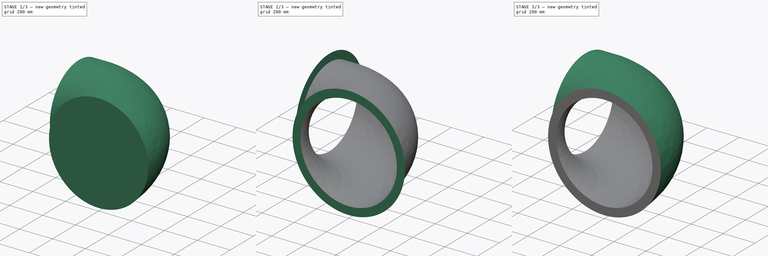
[diagram: build sequence overview — one tinted view per stage of 3, left to right]
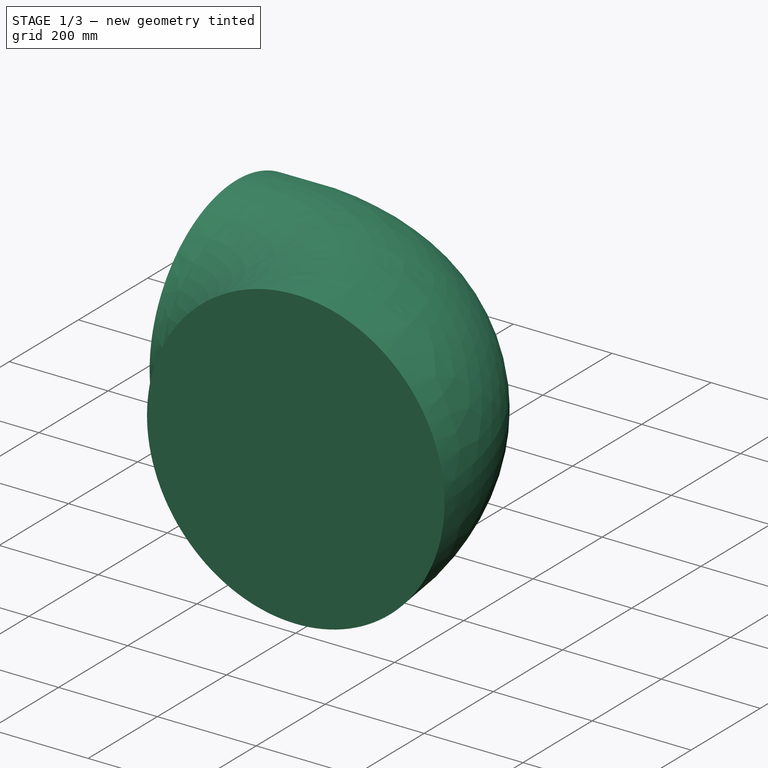
[diagram: stage 1 of 3 — iso view after this stage's code; geometry added in this stage tinted green]
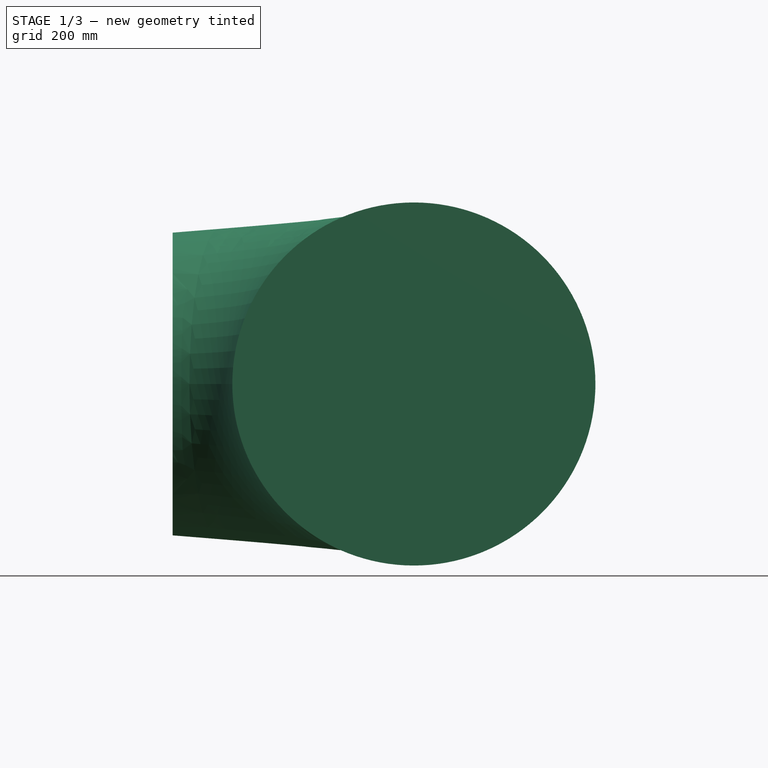
[diagram: stage 1 of 3 — front view after this stage's code; geometry added in this stage tinted green]
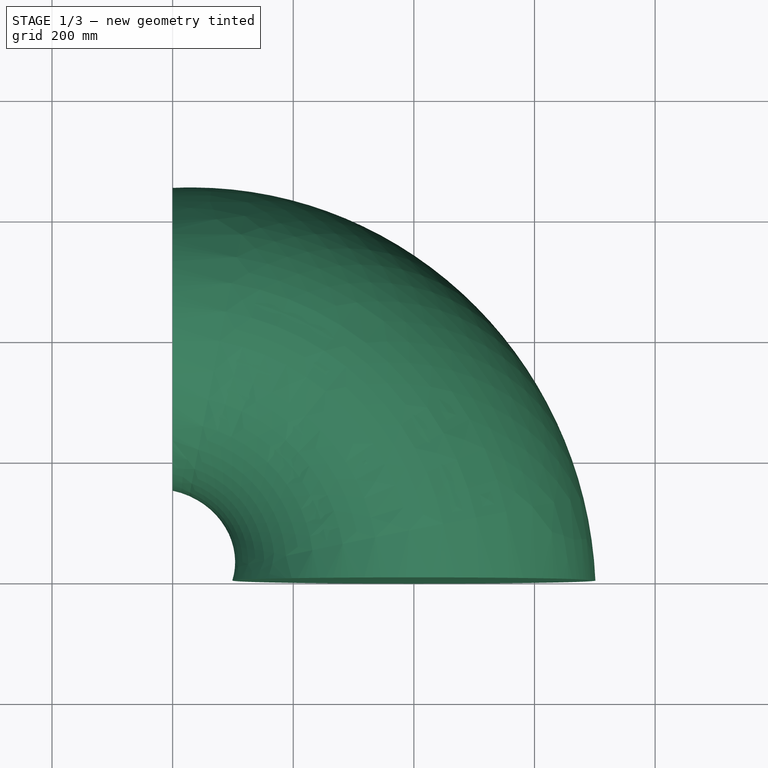
[diagram: stage 1 of 3 — top view after this stage's code; geometry added in this stage tinted green]
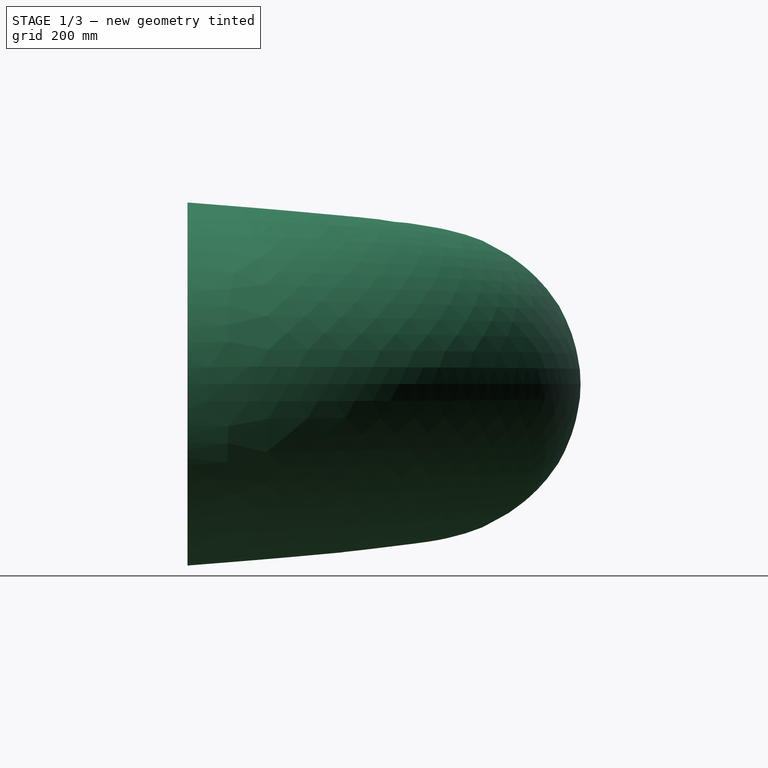
[diagram: stage 1 of 3 — right view after this stage's code; geometry added in this stage tinted green]
FCSTD DOCUMENT  (FreeCAD 1.0R38641 +468 (Git))
Label: Duct_curved_circular_complete_R05
License: All rights reserved
LicenseURL: http://en.wikipedia.org/wiki/All_rights_reserved
objects: Sketcher::SketchObject×8, App::DocumentObjectGroup×4, Part::Sweep×3, TechDraw::DrawViewPart×3, App::MaterialObjectPython×2, Part::Cut×2, Part::Extrusion×2, Spreadsheet::Sheet×1, TechDraw::DrawSVGTemplate×1, TechDraw::DrawViewSpreadsheet×1, Part::Part2DObjectPython×1, App::TextDocument×1, App::VarSet×1, App::DocumentObjectGroupPython×1, TechDraw::DrawProjGroupItem×1, TechDraw::DrawViewSection×1, TechDraw::DrawPage×1
note: 24 computed .brp shape members not serialized (recipe doc carries the construction recipe); baked Part::Feature solids carry a one-line shape summary decoded from their .brp

FEATURE [Spreadsheet::Sheet] Spreadsheet003  label="Output_circular_duct"
  cells = A1='Description:; A2==<<Curved duct (%s>> % round(VarSet.Duct_Axis.LastAngle - VarSet.Duct_Axis.FirstAngle) + <<) for air conditioning composed of %s>> % VarSet.Duct_Sheet_thickness + << thick %s>> % VarSet.Materials_Sheet_metal.Label + << sheets (diameters of %s>> % VarSet.Duct_Diameter1 + << and %s>> % VarSet.Duct_Diameter2 + <<)>> + VarSet.Insulation_Insulation * (<< with an external insulation layer of %s>> % VarSet.Insulation_Thickness + << thick %s>> % VarSet.Materials_Insulation.Label + << blanket>>) + <<.>>; A5='Components; B5='Dimensions; C5='Material; D5='Area; A6='Duct; C6==VarSet.Materials_Sheet_metal.Label; D6==Cut.Base_Area; A7='1.1. Duct_pipe length:; B7==VarSet.Duct_Axis.LastAngle - VarSet.Duct_Axis.FirstAngle; A8='1.2. Axis radius:; B8==VarSet.Duct_Axis.Radius; A9='1.3. Diameter 1:; B9==VarSet.Duct_Diameter1; A10='1.4. Diameter 2:; B10==VarSet.Duct_Diameter2; A11='1.5. Sheet thickness:; B11==VarSet.Duct_Sheet_thickness; A12==(VarSet.Flange_Flange_01 + VarSet.Flange_Flange_02 - VarSet.Flange_Flange_01 * VarSet.Flange_Flange_02) * <<2.Flanges>>; D12==(VarSet.Flange_Flange_01 + VarSet.Flange_Flange_02 - VarSet.Flange_Flange_01 * VarSet.Flange_Flange_02) * str(round(Extrude.Base_Area * VarSet.Flange_Flange_01 + Extrude002.Base_Area * VarSet.Flange_Flange_02)); A13==(VarSet.Flange_Flange_01 + VarSet.Flange_Flange_02 - VarSet.Flange_Flange_01 * VarSet.Flange_Flange_02) * <<2.1. Flanges height:>>; B13==(VarSet.Flange_Flange_01 + VarSet.Flange_Flange_02 - VarSet.Flange_Flange_01 * VarSet.Flange_Flange_02) * str(VarSet.Flange_Height); A14==(VarSet.Flange_Flange_01 + VarSet.Flange_Flange_02 - VarSet.Flange_Flange_01 * VarSet.Flange_Flange_02) * <<2.2. Flanges thickness:>>; B14==(VarSet.Flange_Flange_01 + VarSet.Flange_Flange_02 - VarSet.Flange_Flange_01 * VarSet.Flange_Flange_02) * str(VarSet.Flange_Thickness); A15==VarSet.Insulation_Insulation * <<3. Insulation>>; C15==VarSet.Insulation_Insulation * VarSet.Materials_Insulation.Label; D15==VarSet.Insulation_Insulation * str(round(Cut008.Base_Area)); A16==VarSet.Insulation_Insulation * <<3.1.Insulation thickness:>>; B16==VarSet.Insulation_Insulation * str(VarSet.Insulation_Thickness)
FEATURE [App::DocumentObjectGroup] Group001  label="Spreadsheet_output_"
  Group = -> [Spreadsheet003]
FEATURE [TechDraw::DrawSVGTemplate] Template
  EditableTexts = AUTHOR_NAME=AUTHOR NAME; DN=DN; DRAWING_TITLE=DRAWING TITLE; FC-DATE=DD/MM/YYYY; FC-REV=REV A; FC-SC=SCALE; FC-SH=X / Y; FC-SI=A3; FreeCAD_DRAWING=FreeCAD DRAWING; PN=PN
  Height = 297
  Orientation = 1
  Template = <userpath>/.cache/FreeCAD/Cache/FreeCAD_Doc_4981bfa1-569c-477a-b416-fe8666e2ccff_d7bfc7_3891/A3_Landscape_ISO7200TD.svg
  Width = 420
FEATURE [TechDraw::DrawViewSpreadsheet] Sheet  label="Spreadsheet"
  CellEnd = D16
  CellStart = A5
  Font = Arial
  LineWidth = 0.35
  LockPosition = false
  Rotation = 0
  ScaleType = 2
  Source = -> Spreadsheet003
  Symbol = <blob: 10981 chars omitted>
  TextSize = 14
  X = 319.434
  Y = 120.168
  expr: Scale = 1
FEATURE [Part::Part2DObjectPython] Arc001  label="Axis_"  # Draft 2D object (typed FeaturePython)
  Area = 0
  FirstAngle = 0
  LastAngle = 90
  MakeFace = false
  Radius = 400
FEATURE [Sketcher::SketchObject] Sketch  label="Opening_02_internal_circular_"
  ArcFitTolerance = 0
  AttachmentSupport = -> [Arc001]
  FullyConstrained = true
  MakeInternals = false
  MapMode = 7
  Placement = pos=(1.3441e-08,400,0) rot=(0.57735,0.57735,0.57735;2.0944rad)
  expr: .Constraints.Diameter = VarSet.Duct_Diameter2
  expr: .Constraints.Horizontal_position = VarSet.Duct_Opening2_horizontal_position
  expr: .Constraints.Vertical_position = VarSet.Duct_Opening2_vertical_position
  expr: AttachmentSupport = VarSet.Duct_Axis
  expr: MapPathParameter = 1 - VarSet.Duct_Flip_axis
  sketch-geometry (1):
    g0: Circle CenterX=0 CenterY=0 CenterZ=0 NormalX=0 NormalY=0 NormalZ=1 AngleXU=0 Radius=250
  constraints (3):
    c: Diameter(g0) = 500  'Diameter'
    c: DistanceX(g-1,g0) = 0  'Horizontal_position'
    c: DistanceY(g-1,g0) = 0  'Vertical_position'
FEATURE [Sketcher::SketchObject] Sketch032  label="Opening_01_internal_circular_"
  ArcFitTolerance = 0
  AttachmentSupport = -> [Arc001]
  FullyConstrained = true
  MakeInternals = false
  MapMode = 7
  Placement = pos=(400,0,0) rot=(1,0,0;1.5708rad)
  expr: .AttachmentOffset.Base.z = 0
  expr: .Constraints.Diameter = VarSet.Duct_Diameter1
  expr: AttachmentSupport = VarSet.Duct_Axis
  expr: MapPathParameter = VarSet.Duct_Flip_axis
  sketch-geometry (1):
    g0: Circle CenterX=0 CenterY=0 CenterZ=0 NormalX=0 NormalY=0 NormalZ=1 AngleXU=0 Radius=300
  constraints (2):
    c: Coincident(g0,g-1)
    c: Diameter(g0) = 600  'Diameter'
FEATURE [Part::Sweep] Sweep001  label="Duct_curved_internal_"
  Frenet = true
  Sections = -> [Sketch032,Sketch]
  Solid = true
  Spine = -> Arc001
  Transition = 1
  expr: Spine = VarSet.Duct_Axis
  expr: Visibility = VarSet.Duct_Show_volume_only
FEATURE [Sketcher::SketchObject] Sketch033  label="Opening_02_external_circular_"
  ArcFitTolerance = 0
  AttachmentSupport = -> [Arc001]
  FullyConstrained = true
  MakeInternals = false
  MapMode = 7
  Placement = pos=(1.3441e-08,400,0) rot=(0.57735,0.57735,0.57735;2.0944rad)
  expr: .Constraints.Diameter = VarSet.Duct_Diameter2 + 2 * VarSet.Duct_Sheet_thickness
  expr: .Constraints.Horizontal_position = VarSet.Duct_Opening2_horizontal_position
  expr: .Constraints.Vertical_position = VarSet.Duct_Opening2_vertical_position
  expr: AttachmentSupport = VarSet.Duct_Axis
  expr: MapPathParameter = 1 - VarSet.Duct_Flip_axis
  sketch-geometry (1):
    g0: Circle CenterX=0 CenterY=0 CenterZ=0 NormalX=0 NormalY=0 NormalZ=1 AngleXU=0 Radius=251
  constraints (3):
    c: Diameter(g0) = 502  'Diameter'
    c: DistanceX(g-1,g0) = 0  'Horizontal_position'
    c: DistanceY(g-1,g0) = 0  'Vertical_position'
FEATURE [Sketcher::SketchObject] Sketch034  label="Opening_01_external_circular_"
  ArcFitTolerance = 0
  AttachmentSupport = -> [Arc001]
  FullyConstrained = true
  MakeInternals = false
  MapMode = 7
  Placement = pos=(400,0,0) rot=(1,0,0;1.5708rad)
  expr: .AttachmentOffset.Base.z = 0
  expr: .Constraints.Diameter = VarSet.Duct_Diameter1 + 2 * VarSet.Duct_Sheet_thickness
  expr: AttachmentSupport = VarSet.Duct_Axis
  expr: MapPathParameter = VarSet.Duct_Flip_axis
  sketch-geometry (1):
    g0: Circle CenterX=0 CenterY=0 CenterZ=0 NormalX=0 NormalY=0 NormalZ=1 AngleXU=0 Radius=301
  constraints (2):
    c: Coincident(g0,g-1)
    c: Diameter(g0) = 602  'Diameter'
FEATURE [Part::Sweep] Sweep005  label="Duct_curved_external_"
  Frenet = true
  Sections = -> [Sketch034,Sketch033]
  Solid = true
  Spine = -> Arc001
  Transition = 1
  expr: Spine = VarSet.Duct_Axis
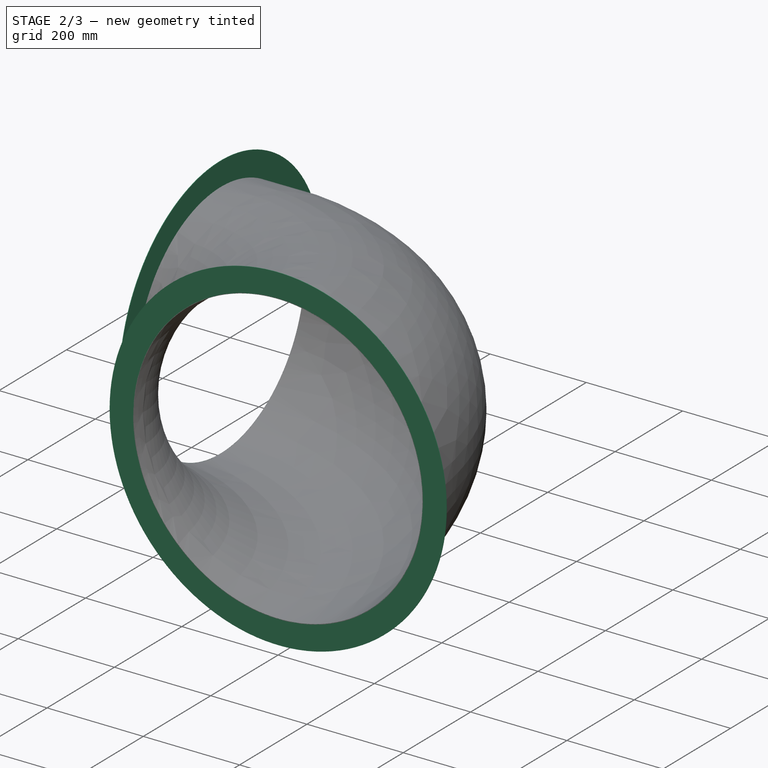
[diagram: stage 2 of 3 — iso view after this stage's code; geometry added in this stage tinted green]
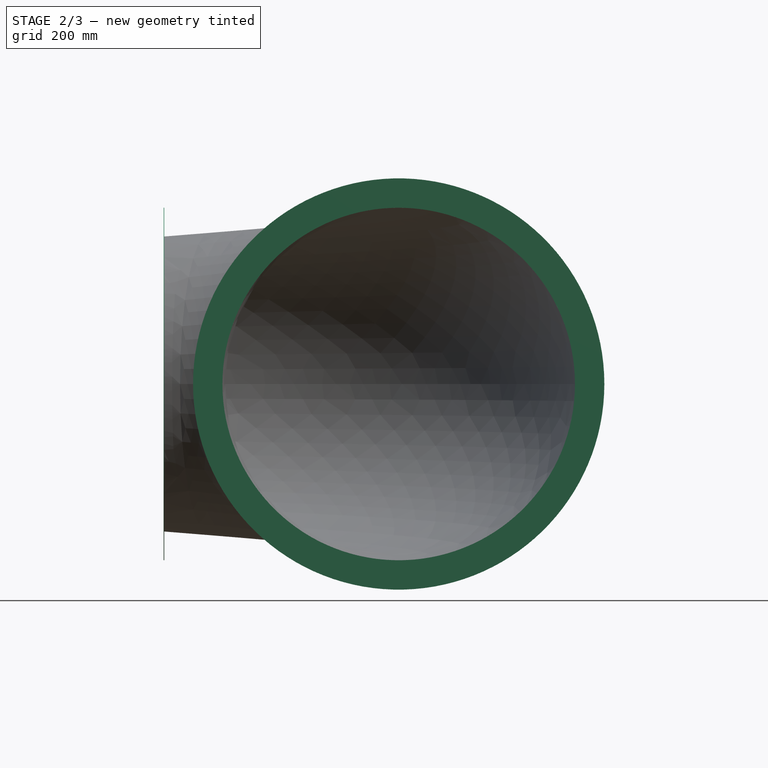
[diagram: stage 2 of 3 — front view after this stage's code; geometry added in this stage tinted green]
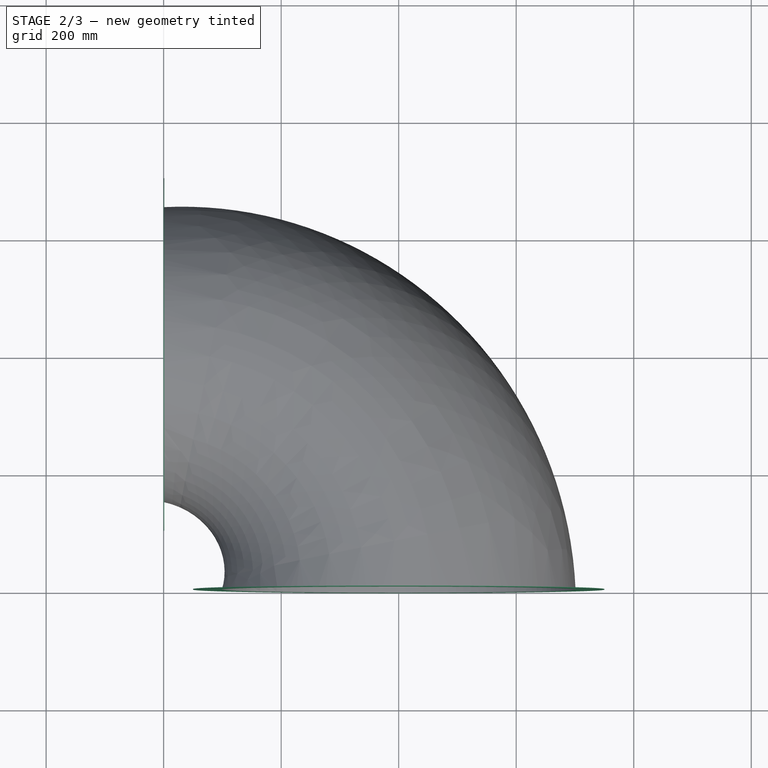
[diagram: stage 2 of 3 — top view after this stage's code; geometry added in this stage tinted green]
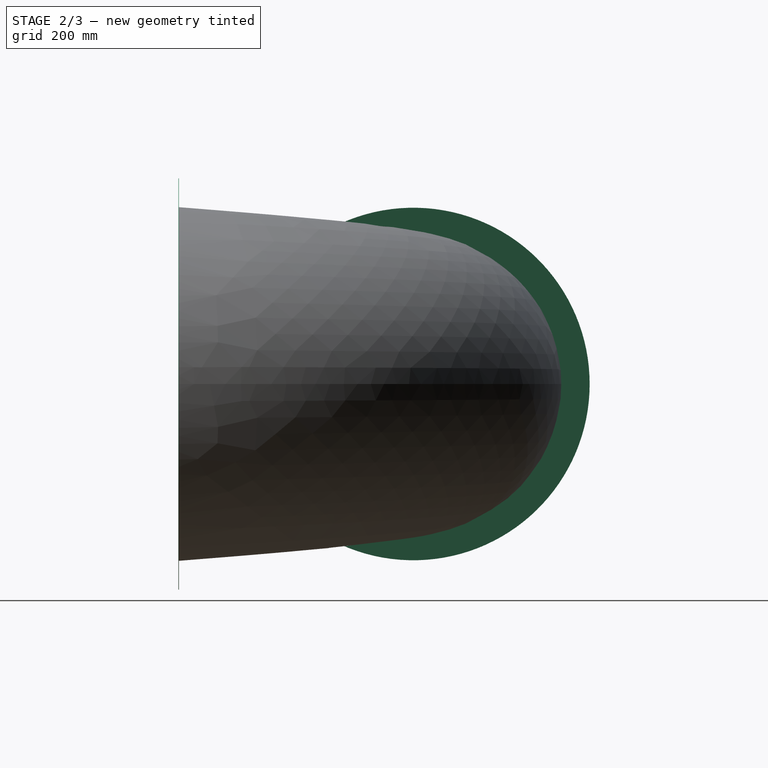
[diagram: stage 2 of 3 — right view after this stage's code; geometry added in this stage tinted green]
FEATURE [Sketcher::SketchObject] Sketch037  label="Opening_01_internal_circular_flange"
  ArcFitTolerance = 0
  AttachmentSupport = -> [Arc001]
  FullyConstrained = true
  MakeInternals = false
  MapMode = 7
  Placement = pos=(400,0,0) rot=(1,0,0;1.5708rad)
  expr: .AttachmentOffset.Base.z = 0
  expr: .Constraints.Diameter_external = VarSet.Duct_Diameter1 + 2 * VarSet.Flange_Height
  expr: .Constraints.Diameter_internal = VarSet.Duct_Diameter1
  expr: AttachmentSupport = VarSet.Duct_Axis
  expr: MapPathParameter = VarSet.Duct_Flip_axis
  sketch-geometry (2):
    g0: Circle CenterX=0 CenterY=0 CenterZ=0 NormalX=0 NormalY=0 NormalZ=1 AngleXU=0 Radius=300
    g1: Circle CenterX=0 CenterY=0 CenterZ=0 NormalX=0 NormalY=0 NormalZ=1 AngleXU=0 Radius=350
  constraints (4):
    c: Coincident(g0,g-1)
    c: Diameter(g0) = 600  'Diameter_internal'
    c: Coincident(g1,g0)
    c: Diameter(g1) = 700  'Diameter_external'
FEATURE [Sketcher::SketchObject] Sketch038  label="Opening_02_internal_circular_flange_02"
  ArcFitTolerance = 0
  AttachmentSupport = -> [Arc001]
  FullyConstrained = true
  MakeInternals = false
  MapMode = 7
  Placement = pos=(1.3441e-08,400,0) rot=(0.57735,0.57735,0.57735;2.0944rad)
  expr: .Constraints.Diameter_external = VarSet.Duct_Diameter2 + 2 * VarSet.Flange_Height
  expr: .Constraints.Diameter_internal = VarSet.Duct_Diameter2
  expr: .Constraints.Horizontal_position = VarSet.Duct_Opening2_horizontal_position
  expr: .Constraints.Vertical_position = VarSet.Duct_Opening2_vertical_position
  expr: AttachmentSupport = VarSet.Duct_Axis
  expr: MapPathParameter = 1 - VarSet.Duct_Flip_axis
  sketch-geometry (2):
    g0: Circle CenterX=0 CenterY=0 CenterZ=0 NormalX=0 NormalY=0 NormalZ=1 AngleXU=0 Radius=250
    g1: Circle CenterX=0 CenterY=0 CenterZ=0 NormalX=0 NormalY=0 NormalZ=1 AngleXU=0 Radius=300
  constraints (5):
    c: Diameter(g0) = 500  'Diameter_internal'
    c: Diameter(g1) = 600  'Diameter_external'
    c: Coincident(g0,g1)
    c: DistanceX(g-1,g0) = 0  'Horizontal_position'
    c: DistanceY(g-1,g0) = 0  'Vertical_position'
FEATURE [App::TextDocument] Text_document  label="Instructions"
  Text = 1. Construction of the axes in the final position of the project:\n\n. Use only individual lines and curves to construct the axes in the final position of the duct network project, one for each duct section;\n\n. Do not use polylines or sketches. If there is already a network with these elements, transform them into individual lines and curves;\n\n. Before applying the ducts in the final network, review the spreadsheets and drawings of the duct files according to the project needs. This will reduce the final review work (see item 3). Be careful not to erase the automation (using expressions) contained in the spreadsheet fields.\n\n2. Application of the component in the final project (see the corresponding tutorial videos):\n\n. In the duct properties window, replace the existing axis with the corresponding section of the final project (Axis of Ducts field);\n\n. Adjust the dimensions of openings 1 and 2 according to the design. If these pre-set dimensions are large in relation to the duct axis radius, this may distort the shape of the duct, but this should be corrected after adjustment to the design;\n\n. If necessary, invert the duct axis so that openings 1 or 2 swap positions (Flip_axis field of Ducts);\n\n3. Review of individual drawings\n\n. After inserting the ducts into the designed network, review the individual drawings contained in the duct files, according to your needs (scale, dimensions, notes, views, etc.).\n\n4. General drawing of the network\n\n. If you prefer, you can create a spreadsheet of the ducts used linked to the individual ones, presenting a summary of the descriptions, areas, materials, dimensions, as well as their sums.\n\n5. Help and comments\n\n. If you encounter any problems and require help or want to make a comment, use the FreeCAD forum for this purpose.
FEATURE [App::MaterialObjectPython] Material049  label="galvanized steel generic"  # material (typed FeaturePython)
  Material = AuthorAndLicense=Uwe Stöhr; CardName=Iron-Generic; Color=(0.8, 0.8, 0.8, 1.0); Density=7874 kg/m^3; DiffuseColor=(0.3607843220233917, 0.3607843220233917, 0.40784314274787903); ElectricalConductivity=10.3 MS/m; Father=Metal; KindOfMaterial=Iron; Name=galvanized steel generic; PoissonRatio=0.29; RelativePermeability=5000.0; SectionColor=(0.8, 0.8, 0.8, 1.0); ShearModulus=82.0 GPa; SpecificHeat=460.5 J/kg/K; ThermalConductivity=80.4 W/m/K; ThermalExpansionCoefficient=11.8 µm/m/K; Transparency=0; UltimateTensileStrength=497 MPa; ViewColor=(0.8, 0.8, 0.8, 1.0); YieldStrength=428 MPa; YoungsModulus=211 GPa
  Transparency = 0
FEATURE [Part::Cut] Cut  label="Duct_reduction_curved_"
  Base = -> Sweep005
  Base_Area = 1.09437e+06
  Material = -> Material049
  Tool = -> Sweep001
  expr: Base_Area = .Shape.Face1.Area
  expr: Material = VarSet.Materials_Sheet_metal
FEATURE [Part::Extrusion] Extrude  label="Flange_01_"
  Base = -> Sketch037
  Base_Area = 102102
  Dir = (0,-1,2e-16)
  DirMode = 2
  FaceMakerClass = Part::FaceMakerBullseye
  FaceMakerMode = 3
  LengthFwd = 1
  LengthRev = 0
  Material = -> Material049
  Reversed = true
  Solid = true
  Symmetric = false
  expr: Base_Area = .Shape.Face3.Area
  expr: LengthFwd = VarSet.Flange_Thickness
  expr: Material = VarSet.Materials_Sheet_metal
  expr: Reversed = 1 - VarSet.Duct_Flip_axis
  expr: Visibility = VarSet.Flange_Flange_01 * (1 - VarSet.Duct_Show_volume_only)
FEATURE [Part::Extrusion] Extrude002  label="Flange_02"
  Base = -> Sketch038
  Base_Area = 86393.8
  Dir = (1,-3.36025e-11,0)
  DirMode = 2
  FaceMakerClass = Part::FaceMakerBullseye
  FaceMakerMode = 3
  LengthFwd = -1
  LengthRev = 0
  Material = -> Material049
  Reversed = true
  Solid = true
  Symmetric = false
  expr: Base_Area = .Shape.Face3.Area
  expr: LengthFwd = -VarSet.Flange_Thickness
  expr: Material = VarSet.Materials_Sheet_metal
  expr: Reversed = 1 - VarSet.Duct_Flip_axis
  expr: Visibility = VarSet.Flange_Flange_02 * (1 - VarSet.Duct_Show_volume_only)
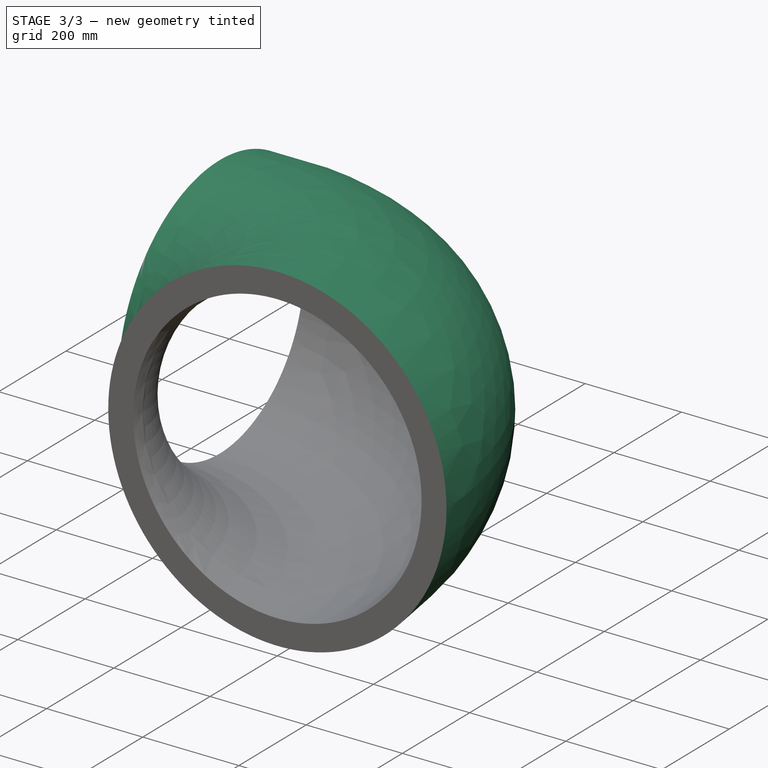
[diagram: stage 3 of 3 — iso view after this stage's code; geometry added in this stage tinted green]
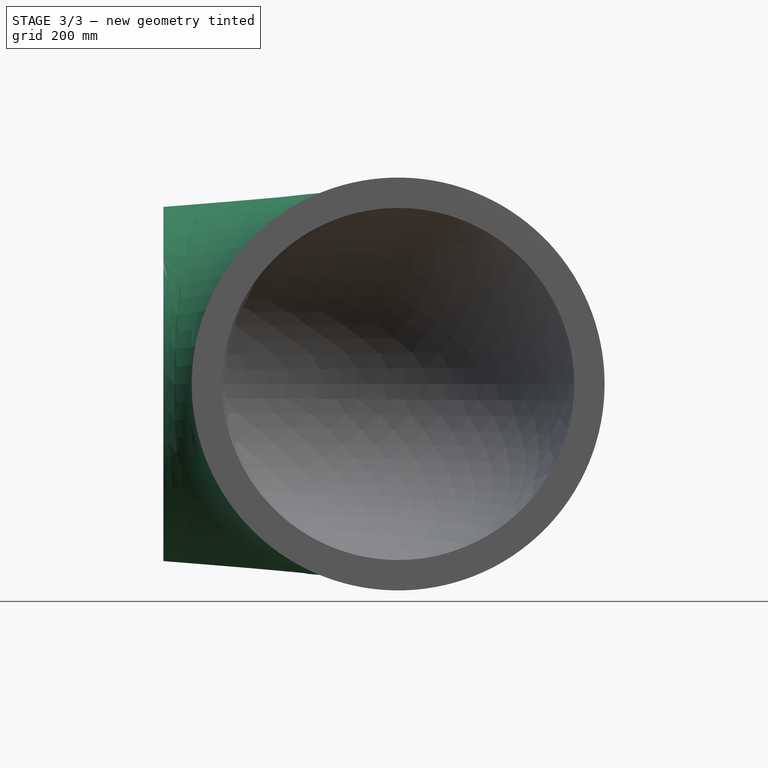
[diagram: stage 3 of 3 — front view after this stage's code; geometry added in this stage tinted green]
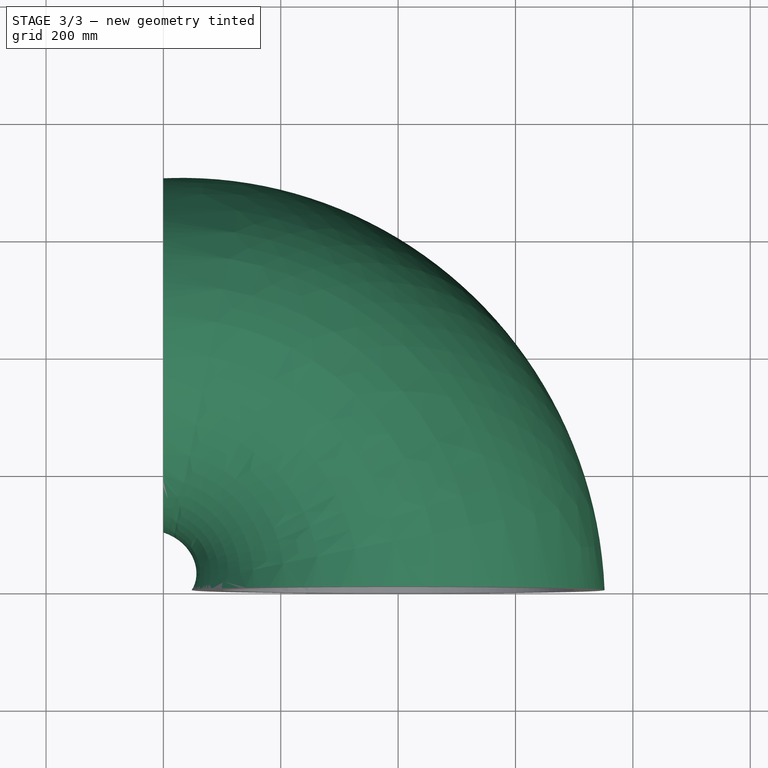
[diagram: stage 3 of 3 — top view after this stage's code; geometry added in this stage tinted green]
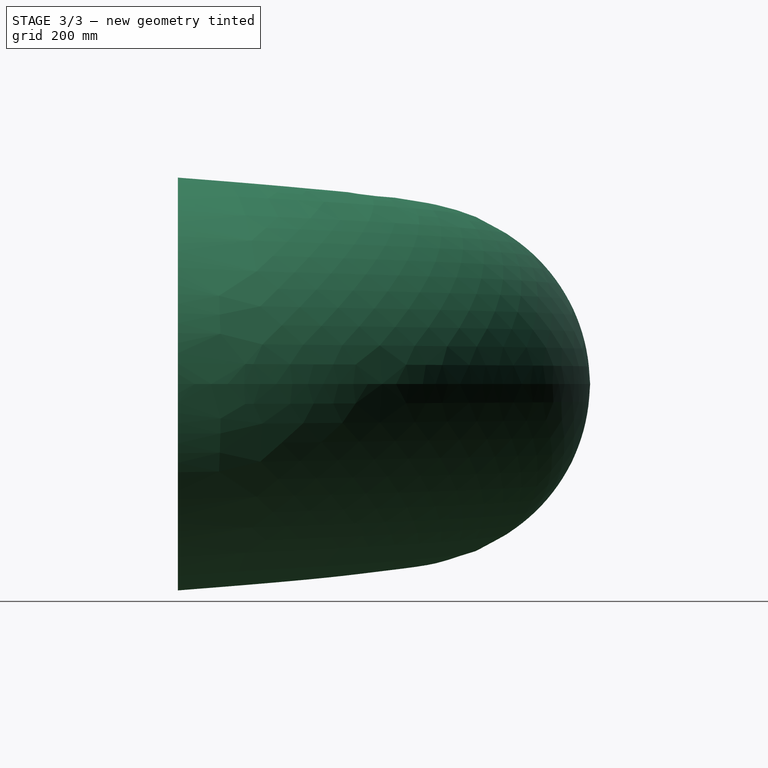
[diagram: stage 3 of 3 — right view after this stage's code; geometry added in this stage tinted green]
FEATURE [Sketcher::SketchObject] Sketch035  label="Opening_02_external_circular_0insulation"
  ArcFitTolerance = 0
  AttachmentSupport = -> [Arc001]
  FullyConstrained = true
  MakeInternals = false
  MapMode = 7
  Placement = pos=(1.3441e-08,400,0) rot=(0.57735,0.57735,0.57735;2.0944rad)
  expr: .Constraints.Diameter = VarSet.Duct_Diameter2 + 2 * VarSet.Duct_Sheet_thickness + 2 * VarSet.Insulation_Thickness
  expr: .Constraints.Horizontal_position = VarSet.Duct_Opening2_horizontal_position
  expr: .Constraints.Vertical_position = VarSet.Duct_Opening2_vertical_position
  expr: AttachmentSupport = VarSet.Duct_Axis
  expr: MapPathParameter = 1 - VarSet.Duct_Flip_axis
  sketch-geometry (1):
    g0: Circle CenterX=0 CenterY=0 CenterZ=0 NormalX=0 NormalY=0 NormalZ=1 AngleXU=0 Radius=301.8
  constraints (3):
    c: Diameter(g0) = 603.6  'Diameter'
    c: DistanceX(g-1,g0) = 0  'Horizontal_position'
    c: DistanceY(g-1,g0) = 0  'Vertical_position'
FEATURE [Sketcher::SketchObject] Sketch036  label="Opening_01_external_circular_insulation"
  ArcFitTolerance = 0
  AttachmentSupport = -> [Arc001]
  FullyConstrained = true
  MakeInternals = false
  MapMode = 7
  Placement = pos=(400,0,0) rot=(1,0,0;1.5708rad)
  expr: .AttachmentOffset.Base.z = 0
  expr: .Constraints.Diameter = VarSet.Duct_Diameter1 + 2 * VarSet.Duct_Sheet_thickness + 2 * VarSet.Insulation_Thickness
  expr: AttachmentSupport = VarSet.Duct_Axis
  expr: MapPathParameter = VarSet.Duct_Flip_axis
  sketch-geometry (1):
    g0: Circle CenterX=0 CenterY=0 CenterZ=0 NormalX=0 NormalY=0 NormalZ=1 AngleXU=0 Radius=351.8
  constraints (2):
    c: Coincident(g0,g-1)
    c: Diameter(g0) = 703.6  'Diameter'
FEATURE [Part::Sweep] Sweep006  label="Duct_curved_external_insulation"
  Frenet = true
  Sections = -> [Sketch036,Sketch035]
  Solid = true
  Spine = -> Arc001
  Transition = 1
  expr: Spine = VarSet.Duct_Axis
FEATURE [TechDraw::DrawViewPart] View  label="Isometric"
  CoarseView = false
  Direction = (0.57735,-0.57735,0.57735)
  Focus = 100
  HardHidden = false
  IsoCount = 0
  IsoHidden = false
  IsoVisible = false
  LockPosition = false
  Perspective = false
  Rotation = 0
  Scale = 0.05
  ScaleType = 2
  ScrubCount = 0
  SeamHidden = false
  SeamVisible = true
  SmoothHidden = false
  SmoothVisible = true
  Source = -> [Cut,Extrude,Extrude002]
  X = 334.212
  XDirection = (0.707107,0.707107,0)
  Y = 227.392
FEATURE [TechDraw::DrawViewPart] View002  label="View 02"
  CoarseView = false
  Direction = (-1,0,0)
  Focus = 100
  HardHidden = false
  IsoCount = 0
  IsoHidden = false
  IsoVisible = false
  LockPosition = false
  Perspective = false
  Rotation = 0
  Scale = 0.05
  ScaleType = 2
  ScrubCount = 0
  SeamHidden = false
  SeamVisible = true
  SmoothHidden = false
  SmoothVisible = true
  Source = -> [Cut,Extrude,Extrude002]
  X = 76.9754
  XDirection = (0,-1,0)
  Y = 104.019
FEATURE [TechDraw::DrawViewPart] View003  label="View 01"
  CoarseView = false
  Direction = (0,0,1)
  Focus = 100
  HardHidden = false
  IsoCount = 0
  IsoHidden = false
  IsoVisible = false
  LockPosition = false
  Perspective = false
  Rotation = 0
  Scale = 0.05
  ScaleType = 2
  ScrubCount = 0
  SeamHidden = false
  SeamVisible = true
  SmoothHidden = false
  SmoothVisible = true
  Source = -> [Cut,Extrude,Extrude002]
  X = 76.9754
  XDirection = (1,0,0)
  Y = 222.356
FEATURE [App::MaterialObjectPython] Material050  label="glass wool with aluminium foill generic"  # material (typed FeaturePython)
  Material = AuthorAndLicense=Uwe Stöhr; CardName=Iron-Generic; Color=(0.8, 0.8, 0.8, 1.0); Density=7874 kg/m^3; DiffuseColor=(0.7372549176216125, 0.7372549176216125, 0.7372549176216125); ElectricalConductivity=10.3 MS/m; Father=Metal; KindOfMaterial=Iron; Name=glass wool with aluminium foill generic; PoissonRatio=0.29; RelativePermeability=5000.0; SectionColor=(0.8, 0.8, 0.8, 1.0); ShearModulus=82.0 GPa; SpecificHeat=460.5 J/kg/K; ThermalConductivity=80.4 W/m/K; ThermalExpansionCoefficient=11.8 µm/m/K; Transparency=0; UltimateTensileStrength=497 MPa; ViewColor=(0.8, 0.8, 0.8, 1.0); YieldStrength=428 MPa; YoungsModulus=211 GPa
  Transparency = 0
FEATURE [App::VarSet] VarSet  label="Duct_curved_circular_properties"
  Duct_Axis = -> Arc001
  Duct_Diameter1 = 600
  Duct_Diameter2 = 500
  Duct_Duct = true
  Duct_Flip_axis = false
  Duct_Opening2_horizontal_position = 0
  Duct_Opening2_vertical_position = 0
  Duct_Sheet_thickness = 1
  Duct_Show_volume_only = false
  Flange_Flange_01 = true
  Flange_Flange_02 = true
  Flange_Height = 50
  Flange_Thickness = 1
  Insulation_Insulation = false
  Insulation_Thickness = 50.8
  Materials_Insulation = -> Material050
  Materials_Sheet_metal = -> Material049
  expr: Insulation_Thickness = 2 in
FEATURE [App::DocumentObjectGroupPython] MaterialContainer  label="Materials"  # scripted group (container) (typed FeaturePython)
  Group = -> [Material049,Material050]
FEATURE [Part::Cut] Cut008  label="Insulation_"
  Base = -> Sweep006
  Base_Area = 1.29722e+06
  Material = -> Material050
  Tool = -> Sweep005
  expr: Base_Area = .Shape.Face1.Area
  expr: Material = VarSet.Materials_Insulation
  expr: Visibility = VarSet.Insulation_Insulation * (1 - VarSet.Duct_Show_volume_only)
FEATURE [App::DocumentObjectGroup] Group  label="Components"
  Group = -> [Cut,Extrude,Extrude002,Cut008]
FEATURE [TechDraw::DrawProjGroupItem] View004  label="View 03"
  CoarseView = false
  Direction = (0,-1,0)
  Focus = 100
  HardHidden = false
  IsoCount = 0
  IsoHidden = false
  IsoVisible = false
  LockPosition = false
  Perspective = false
  Rotation = 0
  RotationVector = (1,0,0)
  Scale = 0.05
  ScaleType = 2
  ScrubCount = 1
  SeamHidden = false
  SeamVisible = false
  SmoothHidden = false
  SmoothVisible = true
  Source = -> [Cut,Extrude,Extrude002,Arc001]
  Type = 0
  X = 183.381
  XDirection = (1,0,0)
  Y = 101.92
FEATURE [TechDraw::DrawViewSection] SectionView  label="Section"
  BaseView = -> View004
  CoarseView = false
  CutSurfaceDisplay = 2
  Direction = (1e-16,0,1)
  FileGeomPattern = /snap/freecad/1248/usr/share/Mod/TechDraw/PAT/FCPAT.pat
  FileHatchPattern = /snap/freecad/1248/usr/share/Mod/TechDraw/Patterns/simple.svg
  Focus = 100
  FuseBeforeCut = false
  HardHidden = false
  HatchOffset = (0,0,0)
  HatchRotation = 0
  HatchScale = 1
  IsoCount = 0
  IsoHidden = false
  IsoVisible = false
  LockPosition = false
  NameGeomPattern = Diamond
  Perspective = false
  Rotation = 0
  Scale = 0.05
  ScaleType = 2
  ScrubCount = 1
  SeamHidden = false
  SeamVisible = false
  SectionDirection = 4
  SectionLineStretch = 1
  SectionNormal = (1e-16,0,1)
  SectionOrigin = (375,350,0)
  SmoothHidden = false
  SmoothVisible = true
  Source = -> [Cut,Extrude,Extrude002,Arc001]
  TrimAfterCut = false
  UsePreviousCut = false
  X = 188
  XDirection = (1,0,-1e-16)
  Y = 217.5
FEATURE [TechDraw::DrawPage] Page  label="Sheet_01"
  KeepUpdated = true
  NextBalloonIndex = 1
  ProjectionType = 0
  Template = -> Template
  Views = -> [Sheet,View,View002,View003,View004,SectionView]
FEATURE [App::DocumentObjectGroup] Group002  label="Drawings_"
  Group = -> [Page]
FEATURE [App::DocumentObjectGroup] Group003  label="Duct_curved_circular_#_"
  Group = -> [VarSet,Group,Group001,MaterialContainer,Group002,Text_document]
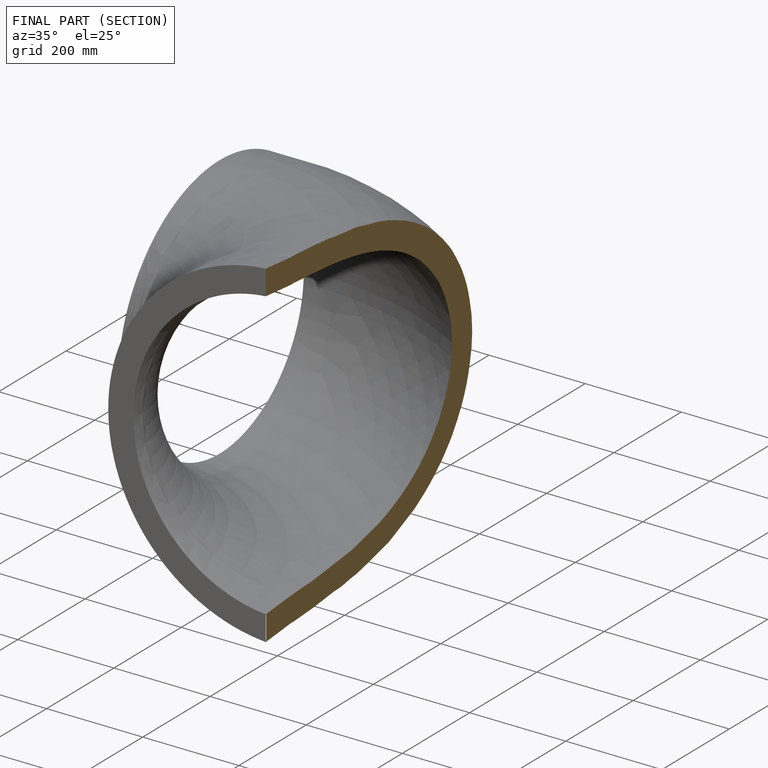
[diagram: finished part — half-section view (interior)]
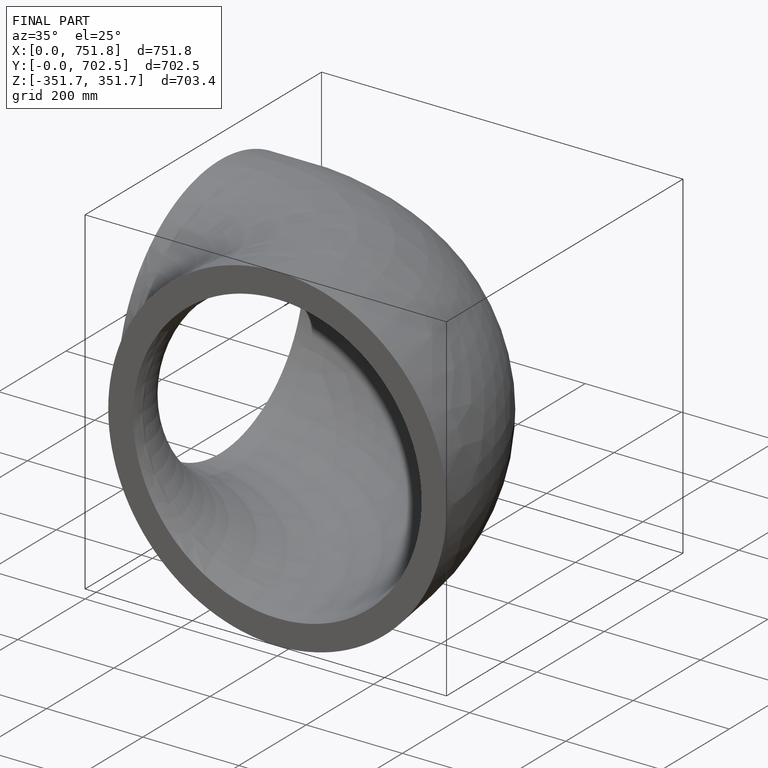
[diagram: finished part — iso view with bounding-box wireframe]
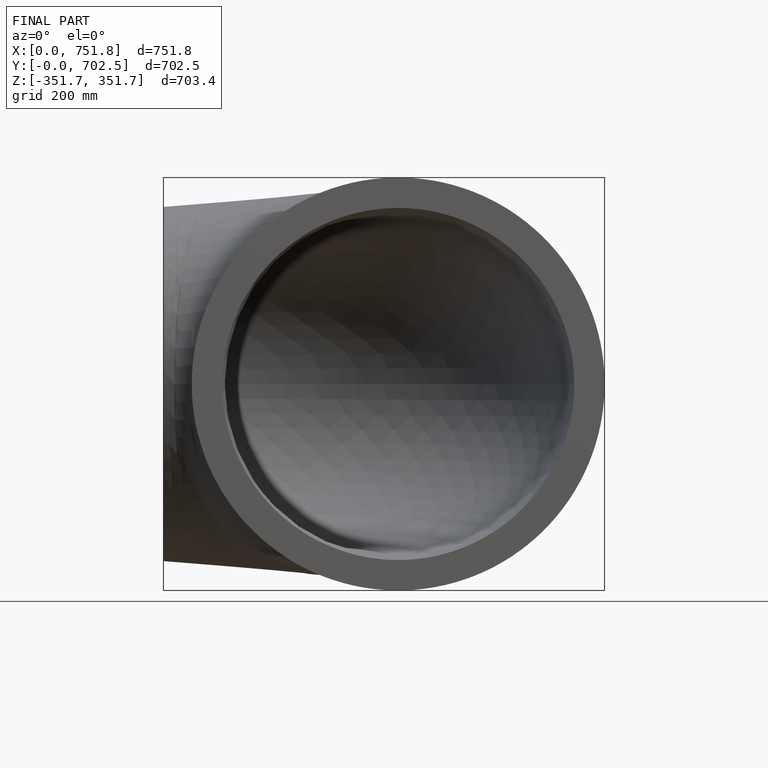
[diagram: finished part — front view with bounding-box wireframe]
